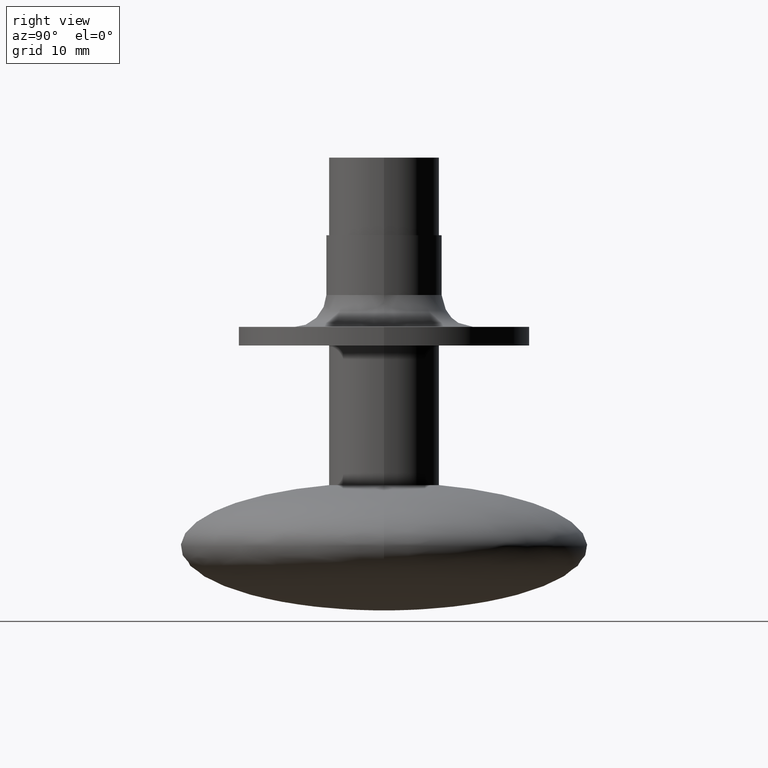
[diagram: clean part render]
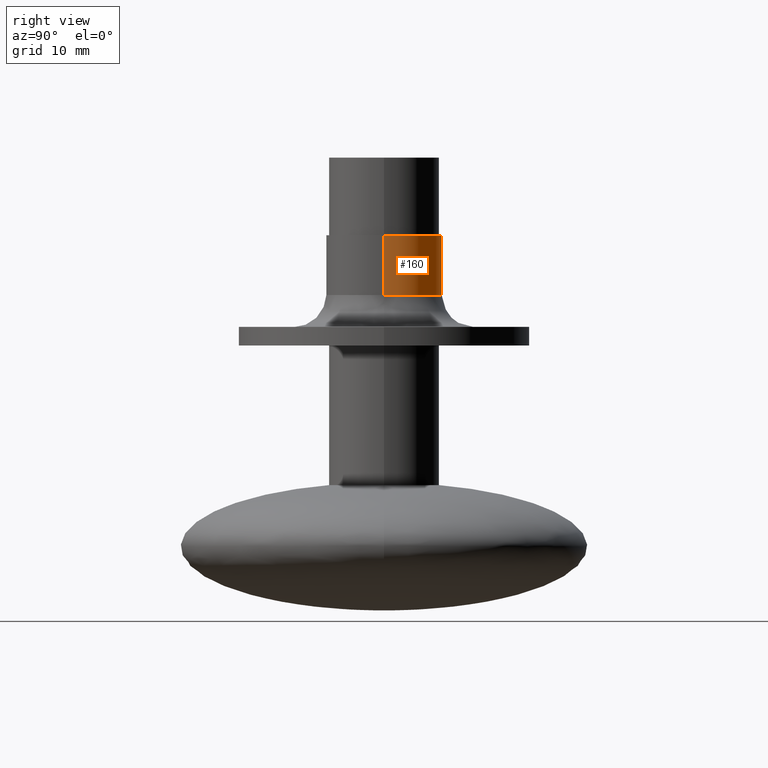
[diagram: same view with one face highlighted and labeled with its STEP entity id]
A machine part, right view. The second image highlights one B-rep face of the part: STEP entity #160.
In plain terms, the highlighted cylindrical surface (partial cylindrical patch) has radius 5 mm, axis along (0, 0, 1).
Its self-contained STEP definition (entity closure, byte-faithful):
#160=ADVANCED_FACE('',(#297),#296,.T.);
#296=CYLINDRICAL_SURFACE('',#575,5.00000000000E+00);
#297=FACE_OUTER_BOUND('',#576,.T.);
#572=CARTESIAN_POINT('',(0.00000000000E+00,0.00000000000E+00,0.00000000000E+00));
#573=DIRECTION('',(-0.00000000000E+00,-0.00000000000E+00,1.00000000000E+00));
#574=DIRECTION('',(1.00000000000E+00,-0.00000000000E+00,-0.00000000000E+00));
#575=AXIS2_PLACEMENT_3D('',#572,#573,#574);
#576=EDGE_LOOP('',(#797,#798,#799,#800));
#797=ORIENTED_EDGE('',*,*,#878,.T.);
#798=ORIENTED_EDGE('',*,*,#891,.F.);
#799=ORIENTED_EDGE('',*,*,#892,.F.);
#800=ORIENTED_EDGE('',*,*,#893,.T.);
#878=EDGE_CURVE('',#1056,#1055,#1063,.T.);
#891=EDGE_CURVE('',#1145,#1055,#1146,.T.);
#892=EDGE_CURVE('',#1152,#1145,#1153,.T.);
#893=EDGE_CURVE('',#1152,#1056,#1159,.T.);
#1055=VERTEX_POINT('',#1400);
#1056=VERTEX_POINT('',#1401);
#1063=CIRCLE('',#1409,5.00000000000E+00);
#1145=VERTEX_POINT('',#1448);
#1146=(BOUNDED_CURVE() B_SPLINE_CURVE(1,(#1449,#1450),.UNSPECIFIED.,.F.,.F.) B_SPLINE_CURVE_WITH_KNOTS((2,2),(8.33333283663E-02,9.16666663731E-01),.UNSPECIFIED.) CURVE() GEOMETRIC_REPRESENTATION_ITEM() RATIONAL_B_SPLINE_CURVE((1.00000000000E+00,1.00000000000E+00)) REPRESENTATION_ITEM('') );
#1152=VERTEX_POINT('',#1451);
#1153=CIRCLE('',#1455,5.00000000000E+00);
#1159=(BOUNDED_CURVE() B_SPLINE_CURVE(1,(#1456,#1457),.UNSPECIFIED.,.F.,.F.) B_SPLINE_CURVE_WITH_KNOTS((2,2),(8.33333333333E-02,9.16666666667E-01),.UNSPECIFIED.) CURVE() GEOMETRIC_REPRESENTATION_ITEM() RATIONAL_B_SPLINE_CURVE((7.50000000000E-01,7.50000000000E-01)) REPRESENTATION_ITEM('') );
#1400=CARTESIAN_POINT('',(5.00000000000E+00,2.96059473233E-16,-6.68475900000E+00));
#1401=CARTESIAN_POINT('',(-5.00000000000E+00,0.00000000000E+00,-6.68475900000E+00));
#1406=CARTESIAN_POINT('',(0.00000000000E+00,0.00000000000E+00,-6.68475900000E+00));
#1407=DIRECTION('',(-0.00000000000E+00,0.00000000000E+00,-1.00000000000E+00));
#1408=DIRECTION('',(-1.00000000000E+00,-1.22460635382E-16,0.00000000000E+00));
#1409=AXIS2_PLACEMENT_3D('',#1406,#1407,#1408);
#1448=CARTESIAN_POINT('',(5.00000000000E+00,2.96059473233E-16,-1.18347590000E+01));
#1449=CARTESIAN_POINT('',(5.00000000000E+00,0.00000000000E+00,-1.18347590307E+01));
#1450=CARTESIAN_POINT('',(5.00000000000E+00,0.00000000000E+00,-6.68475901814E+00));
#1451=CARTESIAN_POINT('',(-5.00000000000E+00,0.00000000000E+00,-1.18347590000E+01));
#1452=CARTESIAN_POINT('',(0.00000000000E+00,0.00000000000E+00,-1.18347590000E+01));
#1453=DIRECTION('',(-0.00000000000E+00,0.00000000000E+00,-1.00000000000E+00));
#1454=DIRECTION('',(-1.00000000000E+00,-1.22460635382E-16,0.00000000000E+00));
#1455=AXIS2_PLACEMENT_3D('',#1452,#1453,#1454);
#1456=CARTESIAN_POINT('',(-5.00000000000E+00,-2.96059473233E-16,-1.18347590000E+01));
#1457=CARTESIAN_POINT('',(-5.00000000000E+00,-2.96059473233E-16,-6.68475900000E+00));